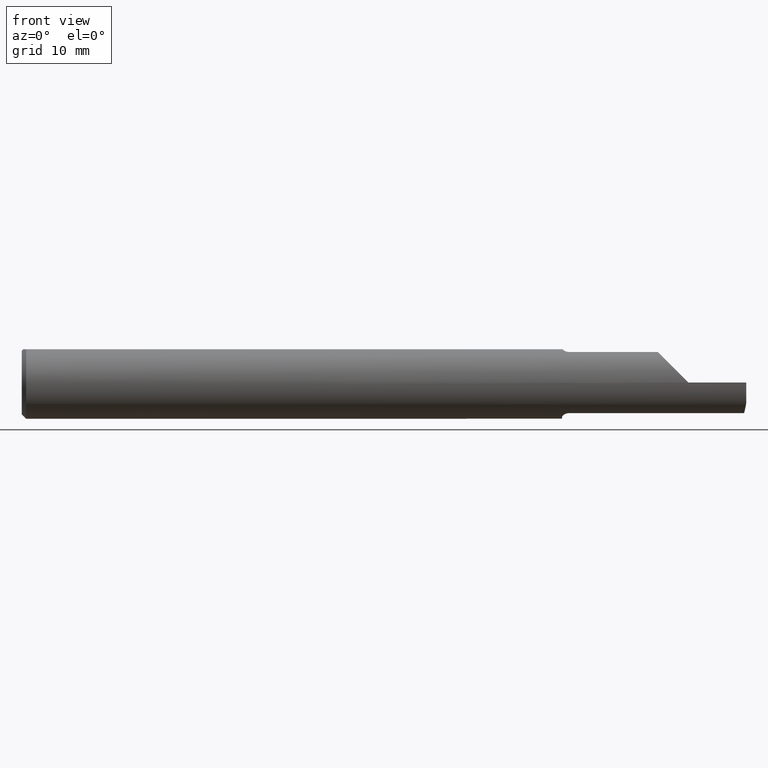
[diagram: clean part render]
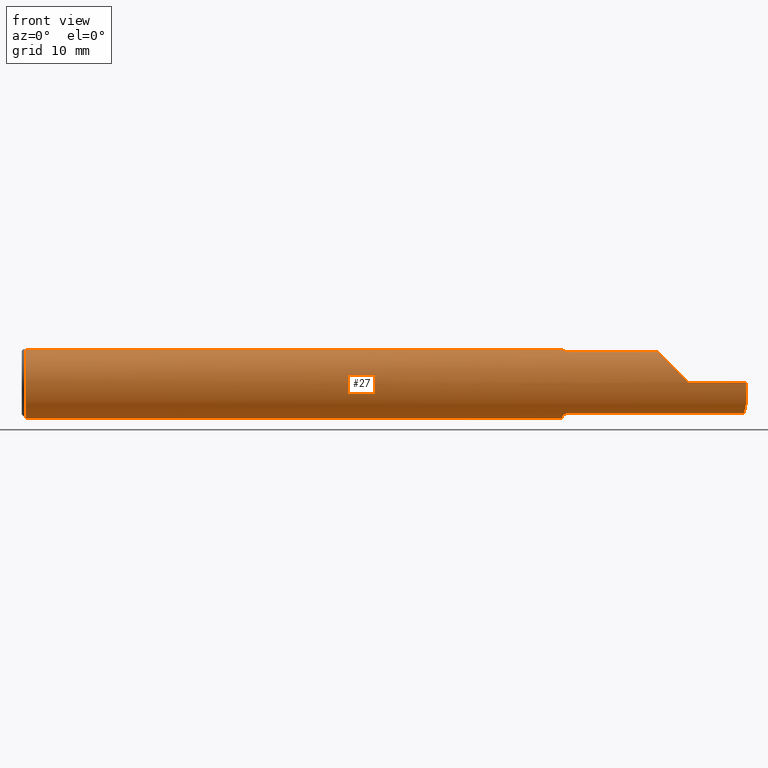
[diagram: same view with one face highlighted and labeled with its STEP entity id]
A machine part, front view. The second image highlights one B-rep face of the part: STEP entity #27.
In plain terms, the highlighted cylindrical surface (edge-blend (fillet) strip) has radius 3.1712 mm, axis along (-1, -0, -0).
Its self-contained STEP definition (entity closure, byte-faithful):
#2 = EDGE_CURVE ( 'NONE', #185, #756, #686, .T. ) ;
#3 = CARTESIAN_POINT ( 'NONE',  ( 0.01499999999999915637, 0.000000000000000000, 0.000000000000000000 ) ) ;
#14 = LINE ( 'NONE', #146, #286 ) ;
#22 = ORIENTED_EDGE ( 'NONE', *, *, #425, .F. ) ;
#27 = ADVANCED_FACE ( 'NONE', ( #692 ), #851, .T. ) ;
#31 = CARTESIAN_POINT ( 'NONE',  ( 1.889000000000000012, -0.06674575881451197401, -0.1055107870327721270 ) ) ;
#37 = CARTESIAN_POINT ( 'NONE',  ( 2.300000000000000266, 0.000000000000000000, 0.000000000000000000 ) ) ;
#47 = VERTEX_POINT ( 'NONE', #157 ) ;
#48 = DIRECTION ( 'NONE',  ( -1.000000000000000000, -0.000000000000000000, -0.000000000000000000 ) ) ;
#54 = CARTESIAN_POINT ( 'NONE',  ( 2.500000000000000000, -0.1027548813330047828, -0.07091513845604555111 ) ) ;
#56 = VERTEX_POINT ( 'NONE', #352 ) ;
#60 = VERTEX_POINT ( 'NONE', #427 ) ;
#66 = AXIS2_PLACEMENT_3D ( 'NONE', #296, #418, #91 ) ;
#72 = CARTESIAN_POINT ( 'NONE',  ( 2.300000000000000266, -0.1248500000000000026, -2.465075339897404302E-17 ) ) ;
#82 = VERTEX_POINT ( 'NONE', #239 ) ;
#87 = ORIENTED_EDGE ( 'NONE', *, *, #98, .T. ) ;
#91 = DIRECTION ( 'NONE',  ( 0.000000000000000000, 0.000000000000000000, 1.000000000000000000 ) ) ;
#98 = EDGE_CURVE ( 'NONE', #120, #500, #393, .T. ) ;
#100 = EDGE_CURVE ( 'NONE', #533, #726, #553, .T. ) ;
#107 = B_SPLINE_CURVE_WITH_KNOTS ( 'NONE', 3,
 ( #151, #542, #678, #465, #205, #811 ),
 .UNSPECIFIED., .F., .F.,
 ( 4, 2, 4 ),
 ( 0.000000000000000000, 0.0004112572997248626011, 0.0008225145994497252023 ),
 .UNSPECIFIED. ) ;
#120 = VERTEX_POINT ( 'NONE', #707 ) ;
#121 = LINE ( 'NONE', #126, #453 ) ;
#123 = CARTESIAN_POINT ( 'NONE',  ( 2.100500000000000256, -0.06674575881451197401, 0.1055107870327721270 ) ) ;
#124 = ORIENTED_EDGE ( 'NONE', *, *, #470, .T. ) ;
#126 = CARTESIAN_POINT ( 'NONE',  ( 2.100500000000000256, -0.06674575881451197401, -0.1055107870327721270 ) ) ;
#127 = LINE ( 'NONE', #123, #554 ) ;
#129 = LINE ( 'NONE', #590, #299 ) ;
#134 = CARTESIAN_POINT ( 'NONE',  ( 2.500000000000000000, -0.06674575881451196013, -0.1055107870327721409 ) ) ;
#136 =( BOUNDED_CURVE ( )  B_SPLINE_CURVE ( 3, ( #288, #360, #505, #356 ),
 .UNSPECIFIED., .F., .T. ) 
 B_SPLINE_CURVE_WITH_KNOTS ( ( 4, 4 ),
 ( 4.715192348093417252, 5.719141952225705872 ),
 .UNSPECIFIED. ) 
 CURVE ( )  GEOMETRIC_REPRESENTATION_ITEM ( )  RATIONAL_B_SPLINE_CURVE ( ( 1.000000000000000000, 0.9177560538299422976, 0.9177560538299422976, 1.000000000000000000 ) ) 
 REPRESENTATION_ITEM ( '' )  );
#139 = EDGE_CURVE ( 'NONE', #120, #756, #858, .T. ) ;
#142 = DIRECTION ( 'NONE',  ( 1.000000000000000000, -0.000000000000000000, -0.000000000000000000 ) ) ;
#145 = ORIENTED_EDGE ( 'NONE', *, *, #326, .T. ) ;
#146 = CARTESIAN_POINT ( 'NONE',  ( 2.500000000000000000, -0.04895916665957456698, 0.1148500000000000076 ) ) ;
#150 = AXIS2_PLACEMENT_3D ( 'NONE', #3, #142, #827 ) ;
#151 = CARTESIAN_POINT ( 'NONE',  ( 1.889000000000000012, -0.06674575881451197401, 0.1055107870327721270 ) ) ;
#152 = EDGE_CURVE ( 'NONE', #217, #82, #127, .T. ) ;
#157 = CARTESIAN_POINT ( 'NONE',  ( 0.01499999999999914770, -0.04895916665957456698, 0.1148500000000000076 ) ) ;
#178 = CARTESIAN_POINT ( 'NONE',  ( 2.497450015745279028, -0.09317139594753261200, -0.08480145278864946456 ) ) ;
#181 = VERTEX_POINT ( 'NONE', #194 ) ;
#185 = VERTEX_POINT ( 'NONE', #802 ) ;
#194 = CARTESIAN_POINT ( 'NONE',  ( 2.492585572526551108, -0.06674575881451196013, -0.1055107870327721409 ) ) ;
#205 = CARTESIAN_POINT ( 'NONE',  ( 1.867833696467886773, -0.05373531148618881231, 0.1128139871958513674 ) ) ;
#217 = VERTEX_POINT ( 'NONE', #790 ) ;
#219 = CIRCLE ( 'NONE', #150, 0.1248500000000000026 ) ;
#222 = DIRECTION ( 'NONE',  ( 1.000000000000000000, -0.000000000000000000, -0.000000000000000000 ) ) ;
#223 = CARTESIAN_POINT ( 'NONE',  ( 1.881166109659049512, -0.06565312228625852509, -0.1062163489814185457 ) ) ;
#228 = CARTESIAN_POINT ( 'NONE',  ( 1.871931173230982681, -0.05931078277131181242, -0.1099137017871685551 ) ) ;
#235 = CARTESIAN_POINT ( 'NONE',  ( 1.864000000000000101, -0.03544785385794579219, -0.1197120384792846048 ) ) ;
#238 = EDGE_CURVE ( 'NONE', #181, #353, #341, .T. ) ;
#239 = CARTESIAN_POINT ( 'NONE',  ( 2.194839212967228281, -0.06674575881451201564, 0.1055107870327720992 ) ) ;
#244 = AXIS2_PLACEMENT_3D ( 'NONE', #833, #222, #637 ) ;
#248 = CARTESIAN_POINT ( 'NONE',  ( 2.500000000000000000, -0.1248500000000000026, -2.465075339897404302E-17 ) ) ;
#256 = CARTESIAN_POINT ( 'NONE',  ( 2.500000000000000000, -0.1027548813330047828, -0.07091513845604555111 ) ) ;
#271 = ORIENTED_EDGE ( 'NONE', *, *, #452, .T. ) ;
#286 = VECTOR ( 'NONE', #404, 39.37007874015748143 ) ;
#288 = CARTESIAN_POINT ( 'NONE',  ( 2.300000000000000266, -0.1248495094103296982, 0.0003500000000000749148 ) ) ;
#291 = ORIENTED_EDGE ( 'NONE', *, *, #152, .F. ) ;
#296 = CARTESIAN_POINT ( 'NONE',  ( 2.500000000000000000, 0.000000000000000000, 0.000000000000000000 ) ) ;
#299 = VECTOR ( 'NONE', #461, 39.37007874015748143 ) ;
#306 = CARTESIAN_POINT ( 'NONE',  ( 1.864000000000000101, 0.000000000000000000, 0.000000000000000000 ) ) ;
#326 = EDGE_CURVE ( 'NONE', #738, #533, #129, .T. ) ;
#329 = VECTOR ( 'NONE', #390, 39.37007874015748143 ) ;
#340 = EDGE_LOOP ( 'NONE', ( #22, #428, #450, #145, #666, #658, #291, #844, #271, #124, #587, #545, #441, #87, #391 ) ) ;
#341 =( BOUNDED_CURVE ( )  B_SPLINE_CURVE ( 3, ( #373, #794, #178, #256 ),
 .UNSPECIFIED., .F., .T. ) 
 B_SPLINE_CURVE_WITH_KNOTS ( ( 4, 4 ),
 ( 1.181333927195137967, 1.584009842849273486 ),
 .UNSPECIFIED. ) 
 CURVE ( )  GEOMETRIC_REPRESENTATION_ITEM ( )  RATIONAL_B_SPLINE_CURVE ( ( 1.000000000000000000, 0.9865332596737929061, 0.9865332596737929061, 1.000000000000000000 ) ) 
 REPRESENTATION_ITEM ( '' )  );
#342 = AXIS2_PLACEMENT_3D ( 'NONE', #740, #816, #486 ) ;
#352 = CARTESIAN_POINT ( 'NONE',  ( 1.866165089549962186, -0.04895916665957456698, 0.1148500000000000076 ) ) ;
#353 = VERTEX_POINT ( 'NONE', #54 ) ;
#356 = CARTESIAN_POINT ( 'NONE',  ( 2.194839212967228281, -0.06674575881451201564, 0.1055107870327720992 ) ) ;
#360 = CARTESIAN_POINT ( 'NONE',  ( 2.256362915931965585, -0.1247271782974887638, 0.04398708406803453902 ) ) ;
#366 = VERTEX_POINT ( 'NONE', #795 ) ;
#373 = CARTESIAN_POINT ( 'NONE',  ( 2.492585572526551108, -0.06674575881451196013, -0.1055107870327721409 ) ) ;
#390 = DIRECTION ( 'NONE',  ( -1.000000000000000000, -0.000000000000000000, -0.000000000000000000 ) ) ;
#391 = ORIENTED_EDGE ( 'NONE', *, *, #735, .F. ) ;
#393 = B_SPLINE_CURVE_WITH_KNOTS ( 'NONE', 3,
 ( #235, #838, #834, #228, #435, #223, #769, #31 ),
 .UNSPECIFIED., .F., .F.,
 ( 4, 2, 2, 4 ),
 ( 0.000000000000000000, 0.0005958128942917653497, 0.0008937193414376426578, 0.001191625788583520074 ),
 .UNSPECIFIED. ) ;
#396 = AXIS2_PLACEMENT_3D ( 'NONE', #37, #567, #843 ) ;
#404 = DIRECTION ( 'NONE',  ( -1.000000000000000000, -0.000000000000000000, -0.000000000000000000 ) ) ;
#418 = DIRECTION ( 'NONE',  ( -1.000000000000000000, -0.000000000000000000, -0.000000000000000000 ) ) ;
#425 = EDGE_CURVE ( 'NONE', #181, #366, #734, .T. ) ;
#427 = CARTESIAN_POINT ( 'NONE',  ( 0.01499999999999915637, 0.000000000000000000, -0.1248500000000000026 ) ) ;
#428 = ORIENTED_EDGE ( 'NONE', *, *, #238, .T. ) ;
#435 = CARTESIAN_POINT ( 'NONE',  ( 1.874619184248488502, -0.06191677978697745360, -0.1084368831979592024 ) ) ;
#441 = ORIENTED_EDGE ( 'NONE', *, *, #139, .F. ) ;
#442 = EDGE_CURVE ( 'NONE', #738, #353, #670, .T. ) ;
#448 = DIRECTION ( 'NONE',  ( 1.000000000000000000, 0.000000000000000000, 0.000000000000000000 ) ) ;
#450 = ORIENTED_EDGE ( 'NONE', *, *, #442, .F. ) ;
#452 = EDGE_CURVE ( 'NONE', #56, #47, #14, .T. ) ;
#453 = VECTOR ( 'NONE', #48, 39.37007874015748143 ) ;
#461 = DIRECTION ( 'NONE',  ( -1.000000000000000000, -0.000000000000000000, -0.000000000000000000 ) ) ;
#465 = CARTESIAN_POINT ( 'NONE',  ( 1.870521963996438108, -0.05807460526863036238, 0.1105848119017751735 ) ) ;
#470 = EDGE_CURVE ( 'NONE', #47, #60, #219, .T. ) ;
#480 = CARTESIAN_POINT ( 'NONE',  ( 1.889000000000000012, -0.06674575881451197401, -0.1055107870327721270 ) ) ;
#486 = DIRECTION ( 'NONE',  ( 0.000000000000000000, 0.000000000000000000, -1.000000000000000000 ) ) ;
#500 = VERTEX_POINT ( 'NONE', #480 ) ;
#505 = CARTESIAN_POINT ( 'NONE',  ( 2.218168021404921753, -0.1036236216557786111, 0.08218197859507844760 ) ) ;
#533 = VERTEX_POINT ( 'NONE', #72 ) ;
#542 = CARTESIAN_POINT ( 'NONE',  ( 1.883512926777241914, -0.06674575881451197401, 0.1055107870327721131 ) ) ;
#543 = CARTESIAN_POINT ( 'NONE',  ( 2.500000000000000000, 0.04895916665957456698, 0.1148500000000000076 ) ) ;
#545 = ORIENTED_EDGE ( 'NONE', *, *, #2, .T. ) ;
#553 = CIRCLE ( 'NONE', #396, 0.1248500000000000026 ) ;
#554 = VECTOR ( 'NONE', #448, 39.37007874015748143 ) ;
#563 = EDGE_CURVE ( 'NONE', #217, #56, #107, .T. ) ;
#567 = DIRECTION ( 'NONE',  ( -1.000000000000000000, -0.000000000000000000, -0.000000000000000000 ) ) ;
#587 = ORIENTED_EDGE ( 'NONE', *, *, #679, .T. ) ;
#590 = CARTESIAN_POINT ( 'NONE',  ( 2.500000000000000000, -0.1248500000000000026, -2.465075339897404302E-17 ) ) ;
#593 = CARTESIAN_POINT ( 'NONE',  ( 1.864000000000000101, 0.04895916665957456698, 0.1148500000000000076 ) ) ;
#594 = DIRECTION ( 'NONE',  ( 1.000000000000000000, 0.000000000000000000, 0.000000000000000000 ) ) ;
#603 = EDGE_CURVE ( 'NONE', #726, #82, #136, .T. ) ;
#628 = CIRCLE ( 'NONE', #244, 0.1248500000000000026 ) ;
#637 = DIRECTION ( 'NONE',  ( 0.000000000000000000, 0.000000000000000000, -1.000000000000000000 ) ) ;
#640 = VECTOR ( 'NONE', #822, 39.37007874015748143 ) ;
#653 = AXIS2_PLACEMENT_3D ( 'NONE', #306, #594, #715 ) ;
#658 = ORIENTED_EDGE ( 'NONE', *, *, #603, .T. ) ;
#666 = ORIENTED_EDGE ( 'NONE', *, *, #100, .T. ) ;
#670 = CIRCLE ( 'NONE', #342, 0.1248500000000000026 ) ;
#678 = CARTESIAN_POINT ( 'NONE',  ( 1.878295400938418958, -0.06462416334000620211, 0.1068895594202840249 ) ) ;
#679 = EDGE_CURVE ( 'NONE', #60, #185, #628, .T. ) ;
#686 = LINE ( 'NONE', #543, #640 ) ;
#692 = FACE_OUTER_BOUND ( 'NONE', #340, .T. ) ;
#707 = CARTESIAN_POINT ( 'NONE',  ( 1.864000000000000101, -0.03544785385794579219, -0.1197120384792846048 ) ) ;
#715 = DIRECTION ( 'NONE',  ( 0.000000000000000000, 0.000000000000000000, -1.000000000000000000 ) ) ;
#718 = CARTESIAN_POINT ( 'NONE',  ( 2.300000000000000266, -0.1248495094103296982, 0.0003500000000000749148 ) ) ;
#726 = VERTEX_POINT ( 'NONE', #718 ) ;
#734 = LINE ( 'NONE', #134, #329 ) ;
#735 = EDGE_CURVE ( 'NONE', #366, #500, #121, .T. ) ;
#738 = VERTEX_POINT ( 'NONE', #248 ) ;
#740 = CARTESIAN_POINT ( 'NONE',  ( 2.500000000000000000, 0.000000000000000000, 0.000000000000000000 ) ) ;
#756 = VERTEX_POINT ( 'NONE', #593 ) ;
#769 = CARTESIAN_POINT ( 'NONE',  ( 1.885021003568511988, -0.06674575881451201564, -0.1055107870327721409 ) ) ;
#790 = CARTESIAN_POINT ( 'NONE',  ( 1.889000000000000012, -0.06674575881451197401, 0.1055107870327721270 ) ) ;
#794 = CARTESIAN_POINT ( 'NONE',  ( 2.494944802869536904, -0.08100450677091575180, -0.09649075241015640791 ) ) ;
#795 = CARTESIAN_POINT ( 'NONE',  ( 2.349311322083690090, -0.06674575881451196013, -0.1055107870327721409 ) ) ;
#802 = CARTESIAN_POINT ( 'NONE',  ( 0.01499999999999915637, 0.04895916665957456698, 0.1148500000000000076 ) ) ;
#811 = CARTESIAN_POINT ( 'NONE',  ( 1.866165089549962186, -0.04895916665957456698, 0.1148500000000000076 ) ) ;
#816 = DIRECTION ( 'NONE',  ( 1.000000000000000000, 0.000000000000000000, 0.000000000000000000 ) ) ;
#822 = DIRECTION ( 'NONE',  ( 1.000000000000000000, 0.000000000000000000, 0.000000000000000000 ) ) ;
#827 = DIRECTION ( 'NONE',  ( 0.000000000000000000, 0.000000000000000000, -1.000000000000000000 ) ) ;
#833 = CARTESIAN_POINT ( 'NONE',  ( 0.01499999999999915637, 0.000000000000000000, 0.000000000000000000 ) ) ;
#834 = CARTESIAN_POINT ( 'NONE',  ( 1.865717012709729117, -0.05032294001735268529, -0.1144560936867379808 ) ) ;
#838 = CARTESIAN_POINT ( 'NONE',  ( 1.864000000000000323, -0.04301706023810924345, -0.1174707257007782807 ) ) ;
#843 = DIRECTION ( 'NONE',  ( 0.000000000000000000, 0.000000000000000000, 1.000000000000000000 ) ) ;
#844 = ORIENTED_EDGE ( 'NONE', *, *, #563, .T. ) ;
#851 = CYLINDRICAL_SURFACE ( 'NONE', #66, 0.1248500000000000026 ) ;
#858 = CIRCLE ( 'NONE', #653, 0.1248500000000000026 ) ;